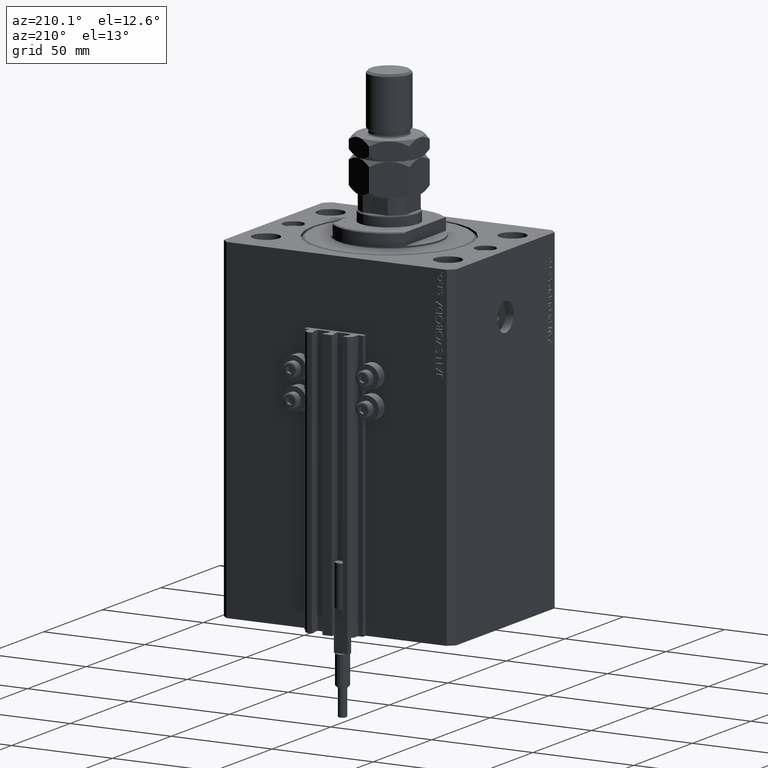
[diagram: clean part render]
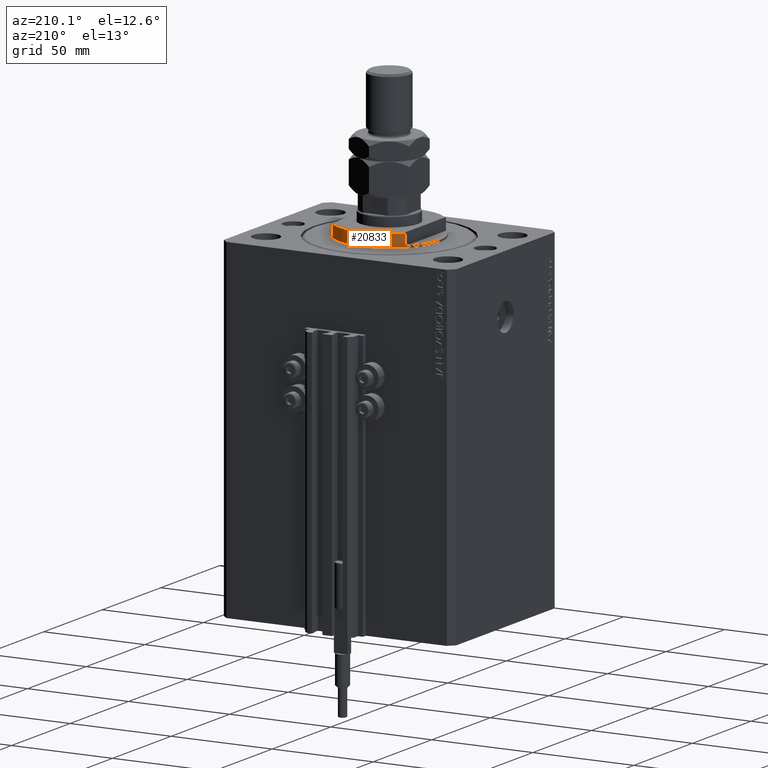
[diagram: same view with one face highlighted and labeled with its STEP entity id]
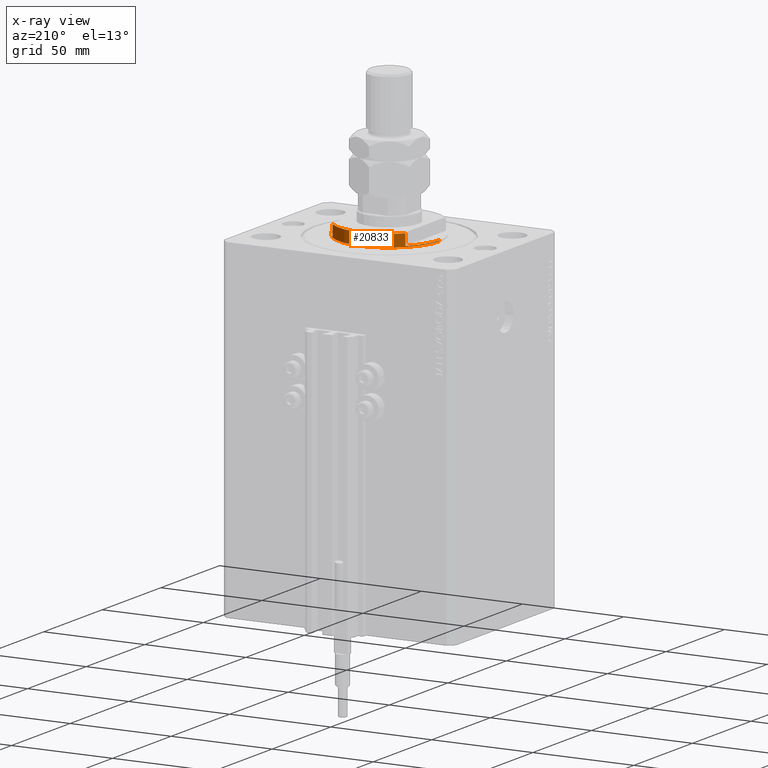
[diagram: x-ray of the same camera — body ghosted, the highlighted face saturated]
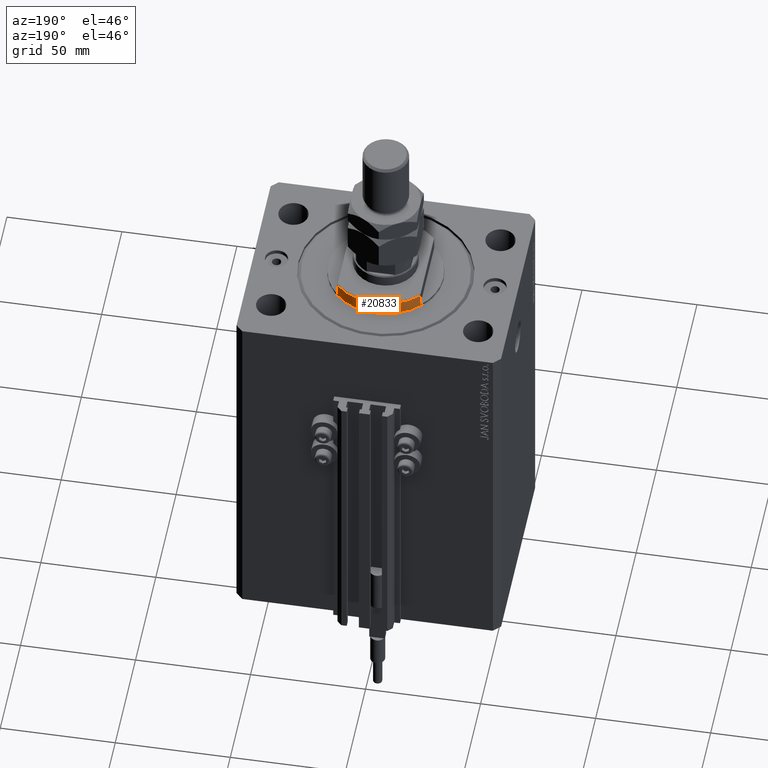
[diagram: same view with one face highlighted and labeled with its STEP entity id]
A machine part, auxiliary view. The second image highlights one B-rep face of the part: STEP entity #20833.
The next image is the same camera in x-ray: the body ghosted, the highlighted face saturated — about 0% of this face is hidden behind the body in this view.
A second angle (auxiliary view) of the same face is appended — the face is thin or edge-on in the first view.
In plain terms, the highlighted cylindrical surface (partial cylindrical patch) has radius 25 mm, axis along (0, 0, -1).
Its self-contained STEP definition (entity closure, byte-faithful):
#276 = CARTESIAN_POINT ( 'NONE',  ( 18.00000000000000000, 17.34935157289747920, -7.000000000000000000 ) ) ;
#1091 = VECTOR ( 'NONE', #8415, 1000.000000000000000 ) ;
#1143 = CARTESIAN_POINT ( 'NONE',  ( -18.00000000000000000, 17.34935157289748986, -6.499999999999978684 ) ) ;
#1665 = CARTESIAN_POINT ( 'NONE',  ( -18.00000000000000000, 17.34935157289747920, -1.000000000000000000 ) ) ;
#1766 = ORIENTED_EDGE ( 'NONE', *, *, #40527, .F. ) ;
#2181 = EDGE_CURVE ( 'NONE', #29380, #10828, #31444, .T. ) ;
#2582 = VERTEX_POINT ( 'NONE', #7621 ) ;
#3114 = DIRECTION ( 'NONE',  ( -1.000000000000000000, 0.000000000000000000, 0.000000000000000000 ) ) ;
#3262 = ORIENTED_EDGE ( 'NONE', *, *, #16636, .T. ) ;
#5037 = AXIS2_PLACEMENT_3D ( 'NONE', #13763, #17759, #25035 ) ;
#5104 = AXIS2_PLACEMENT_3D ( 'NONE', #40135, #43410, #13793 ) ;
#6876 = DIRECTION ( 'NONE',  ( 0.000000000000000000, 0.000000000000000000, -1.000000000000000000 ) ) ;
#7048 = LINE ( 'NONE', #37875, #7939 ) ;
#7105 = CIRCLE ( 'NONE', #13494, 25.00000000000000000 ) ;
#7621 = CARTESIAN_POINT ( 'NONE',  ( 25.00000000000000000, 0.000000000000000000, -0.4999999999999995559 ) ) ;
#7847 = ORIENTED_EDGE ( 'NONE', *, *, #22448, .T. ) ;
#7939 = VECTOR ( 'NONE', #33362, 1000.000000000000000 ) ;
#8071 = EDGE_CURVE ( 'NONE', #46861, #39345, #15501, .T. ) ;
#8415 = DIRECTION ( 'NONE',  ( -0.000000000000000000, -0.000000000000000000, 1.000000000000000000 ) ) ;
#10828 = VERTEX_POINT ( 'NONE', #37281 ) ;
#11966 = VERTEX_POINT ( 'NONE', #1143 ) ;
#13196 = CARTESIAN_POINT ( 'NONE',  ( 0.000000000000000000, 0.000000000000000000, -6.499999999999971578 ) ) ;
#13291 = EDGE_CURVE ( 'NONE', #39212, #11966, #49572, .T. ) ;
#13494 = AXIS2_PLACEMENT_3D ( 'NONE', #31621, #23867, #35639 ) ;
#13763 = CARTESIAN_POINT ( 'NONE',  ( 0.000000000000000000, 0.000000000000000000, -1.000000000000000000 ) ) ;
#13793 = DIRECTION ( 'NONE',  ( 1.000000000000000000, 0.000000000000000000, 0.000000000000000000 ) ) ;
#15501 = CIRCLE ( 'NONE', #23523, 25.00000000000000000 ) ;
#16636 = EDGE_CURVE ( 'NONE', #11966, #39345, #31959, .T. ) ;
#17545 = EDGE_LOOP ( 'NONE', ( #21569, #47980, #7847, #27628, #41146, #1766, #40899, #3262 ) ) ;
#17759 = DIRECTION ( 'NONE',  ( 0.000000000000000000, 0.000000000000000000, -1.000000000000000000 ) ) ;
#17844 = CARTESIAN_POINT ( 'NONE',  ( 25.00000000000000000, 0.000000000000000000, -7.000000000000000000 ) ) ;
#18091 = DIRECTION ( 'NONE',  ( -0.000000000000000000, -0.000000000000000000, 1.000000000000000000 ) ) ;
#18829 = DIRECTION ( 'NONE',  ( -0.000000000000000000, -0.000000000000000000, 1.000000000000000000 ) ) ;
#20833 = ADVANCED_FACE ( 'NONE', ( #36618 ), #47922, .T. ) ;
#21569 = ORIENTED_EDGE ( 'NONE', *, *, #8071, .F. ) ;
#22448 = EDGE_CURVE ( 'NONE', #39828, #2582, #7105, .T. ) ;
#23523 = AXIS2_PLACEMENT_3D ( 'NONE', #25170, #6876, #3114 ) ;
#23867 = DIRECTION ( 'NONE',  ( -0.000000000000000000, -0.000000000000000000, -1.000000000000000000 ) ) ;
#25035 = DIRECTION ( 'NONE',  ( -1.000000000000000000, 0.000000000000000000, 0.000000000000000000 ) ) ;
#25170 = CARTESIAN_POINT ( 'NONE',  ( 0.000000000000000000, 0.000000000000000000, -1.000000000000000000 ) ) ;
#27628 = ORIENTED_EDGE ( 'NONE', *, *, #41384, .F. ) ;
#28191 = CARTESIAN_POINT ( 'NONE',  ( -18.00000000000000000, 17.34935157289747920, -7.000000000000000000 ) ) ;
#29380 = VERTEX_POINT ( 'NONE', #40072 ) ;
#30144 = LINE ( 'NONE', #17844, #30186 ) ;
#30186 = VECTOR ( 'NONE', #18091, 1000.000000000000000 ) ;
#31444 = CIRCLE ( 'NONE', #5037, 25.00000000000000000 ) ;
#31621 = CARTESIAN_POINT ( 'NONE',  ( 0.000000000000000000, 0.000000000000000000, -0.4999999999999995559 ) ) ;
#31758 = DIRECTION ( 'NONE',  ( -1.000000000000000000, 0.000000000000000000, 0.000000000000000000 ) ) ;
#31959 = LINE ( 'NONE', #28191, #1091 ) ;
#32012 = DIRECTION ( 'NONE',  ( 0.000000000000000000, 0.000000000000000000, 1.000000000000000000 ) ) ;
#32019 = CARTESIAN_POINT ( 'NONE',  ( 18.00000000000000000, 17.34935157289748986, -6.499999999999978684 ) ) ;
#33362 = DIRECTION ( 'NONE',  ( -0.000000000000000000, -0.000000000000000000, 1.000000000000000000 ) ) ;
#35639 = DIRECTION ( 'NONE',  ( 1.000000000000000000, 0.000000000000000000, 0.000000000000000000 ) ) ;
#36618 = FACE_OUTER_BOUND ( 'NONE', #17545, .T. ) ;
#37281 = CARTESIAN_POINT ( 'NONE',  ( 25.00000000000000000, 0.000000000000000000, -1.000000000000000000 ) ) ;
#37875 = CARTESIAN_POINT ( 'NONE',  ( -25.00000000000000000, 3.061616997868383043E-15, -7.000000000000000000 ) ) ;
#39082 = EDGE_CURVE ( 'NONE', #46861, #39828, #7048, .T. ) ;
#39212 = VERTEX_POINT ( 'NONE', #32019 ) ;
#39345 = VERTEX_POINT ( 'NONE', #1665 ) ;
#39828 = VERTEX_POINT ( 'NONE', #42950 ) ;
#40072 = CARTESIAN_POINT ( 'NONE',  ( 18.00000000000000000, 17.34935157289747920, -1.000000000000000000 ) ) ;
#40135 = CARTESIAN_POINT ( 'NONE',  ( 0.000000000000000000, 0.000000000000000000, -7.000000000000000000 ) ) ;
#40527 = EDGE_CURVE ( 'NONE', #39212, #29380, #41922, .T. ) ;
#40596 = VECTOR ( 'NONE', #18829, 1000.000000000000000 ) ;
#40899 = ORIENTED_EDGE ( 'NONE', *, *, #13291, .T. ) ;
#41146 = ORIENTED_EDGE ( 'NONE', *, *, #2181, .F. ) ;
#41384 = EDGE_CURVE ( 'NONE', #10828, #2582, #30144, .T. ) ;
#41922 = LINE ( 'NONE', #276, #40596 ) ;
#42950 = CARTESIAN_POINT ( 'NONE',  ( -25.00000000000000000, 3.061616997868383043E-15, -0.4999999999999995559 ) ) ;
#43410 = DIRECTION ( 'NONE',  ( -0.000000000000000000, -0.000000000000000000, 1.000000000000000000 ) ) ;
#45551 = AXIS2_PLACEMENT_3D ( 'NONE', #13196, #32012, #31758 ) ;
#46861 = VERTEX_POINT ( 'NONE', #48655 ) ;
#47922 = CYLINDRICAL_SURFACE ( 'NONE', #5104, 25.00000000000000000 ) ;
#47980 = ORIENTED_EDGE ( 'NONE', *, *, #39082, .T. ) ;
#48655 = CARTESIAN_POINT ( 'NONE',  ( -25.00000000000000000, 3.061616997868383043E-15, -1.000000000000000000 ) ) ;
#49572 = CIRCLE ( 'NONE', #45551, 25.00000000000000000 ) ;